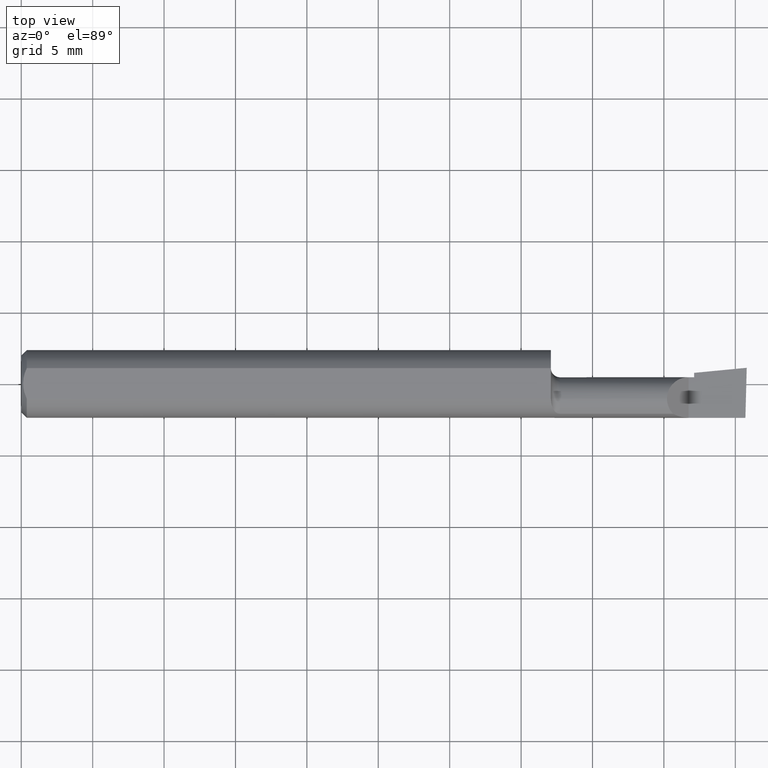
[diagram: clean part render]
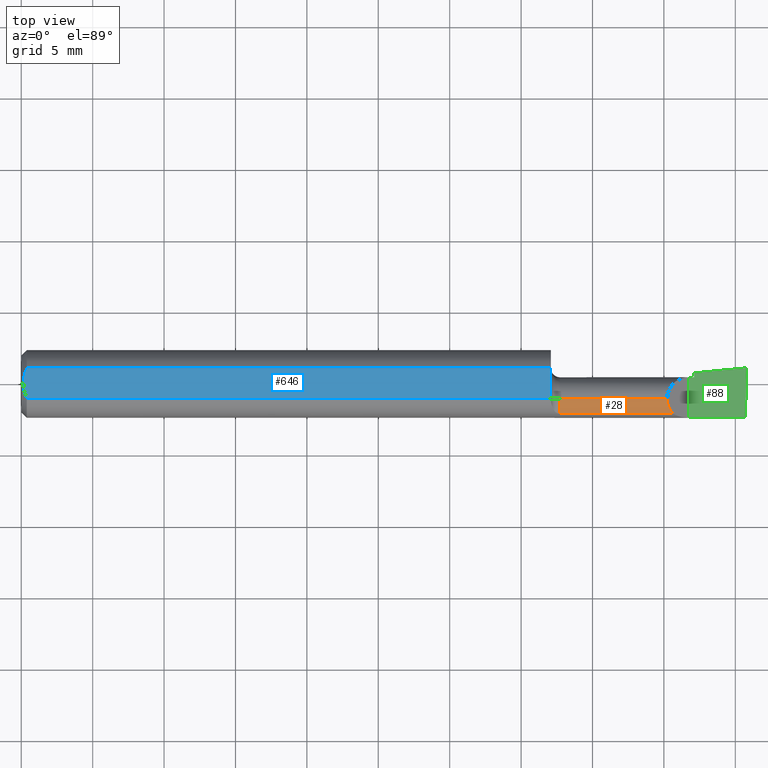
[diagram: same view with three faces highlighted in distinct colors, each labeled with its STEP entity id]
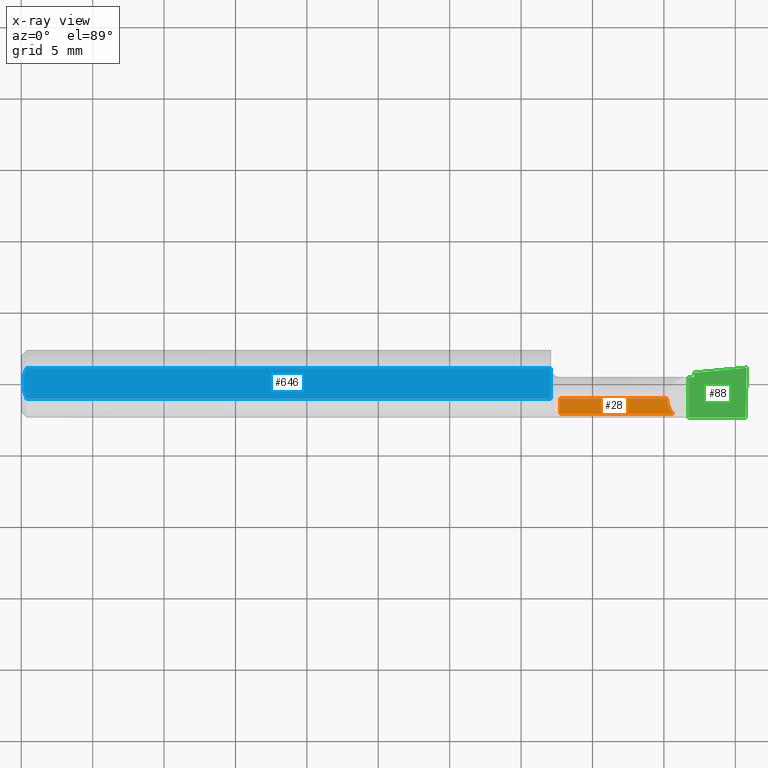
[diagram: x-ray of the same camera — body ghosted, the three highlighted faces saturated]
A machine part, top view with three faces highlighted in distinct colors.
The next image is the same camera in x-ray (body ghosted, the three faces saturated) — at least one of them is partly hidden behind the body in this view.
Their STEP definitions:

[orange] entity #28 — the highlighted cylindrical surface (edge-blend (fillet) strip) has radius 1.5215 mm, axis along (-1, -0, -0).
#3 = VERTEX_POINT ( 'NONE', #570 ) ;
#28 = ADVANCED_FACE ( 'NONE', ( #513 ), #362, .T. ) ;
#46 = VERTEX_POINT ( 'NONE', #633 ) ;
#52 = CARTESIAN_POINT ( 'NONE',  ( 1.796877448822106649, -0.08307469879518077083, 0.04312255117789291076 ) ) ;
#59 = AXIS2_PLACEMENT_3D ( 'NONE', #622, #511, #202 ) ;
#63 = CARTESIAN_POINT ( 'NONE',  ( 1.484999999999999876, -0.04150000000000000216, 0.05989999999999996022 ) ) ;
#169 = EDGE_LOOP ( 'NONE', ( #578, #611, #501, #244 ) ) ;
#173 = EDGE_CURVE ( 'NONE', #587, #3, #186, .T. ) ;
#177 = EDGE_CURVE ( 'NONE', #587, #395, #444, .T. ) ;
#186 = LINE ( 'NONE', #577, #270 ) ;
#189 = VECTOR ( 'NONE', #423, 39.37007874015748143 ) ;
#202 = DIRECTION ( 'NONE',  ( 0.0000000000000000000, 0.0000000000000000000, 1.000000000000000000 ) ) ;
#240 = AXIS2_PLACEMENT_3D ( 'NONE', #635, #467, #522 ) ;
#243 = CARTESIAN_POINT ( 'NONE',  ( 1.780099999999999349, -0.04150000000000000216, 0.05989999999999998798 ) ) ;
#244 = ORIENTED_EDGE ( 'NONE', *, *, #173, .T. ) ;
#270 = VECTOR ( 'NONE', #470, 39.37007874015748143 ) ;
#362 = CYLINDRICAL_SURFACE ( 'NONE', #59, 0.05989999999999998798 ) ;
#395 = VERTEX_POINT ( 'NONE', #63 ) ;
#423 = DIRECTION ( 'NONE',  ( -1.000000000000000000, -0.0000000000000000000, -0.0000000000000000000 ) ) ;
#435 = EDGE_CURVE ( 'NONE', #46, #395, #460, .T. ) ;
#444 = CIRCLE ( 'NONE', #240, 0.05989999999999996022 ) ;
#460 = LINE ( 'NONE', #516, #189 ) ;
#467 = DIRECTION ( 'NONE',  ( -1.000000000000000000, -0.0000000000000000000, -0.0000000000000000000 ) ) ;
#470 = DIRECTION ( 'NONE',  ( 1.000000000000000000, 0.0000000000000000000, 0.0000000000000000000 ) ) ;
#501 = ORIENTED_EDGE ( 'NONE', *, *, #177, .F. ) ;
#511 = DIRECTION ( 'NONE',  ( -1.000000000000000000, -0.0000000000000000000, -0.0000000000000000000 ) ) ;
#513 = FACE_OUTER_BOUND ( 'NONE', #169, .T. ) ;
#515 = CARTESIAN_POINT ( 'NONE',  ( 1.780099999999999349, -0.05720488466914005338, 0.05989999999999997410 ) ) ;
#516 = CARTESIAN_POINT ( 'NONE',  ( 0.0000000000000000000, -0.04150000000000000216, 0.05989999999999998798 ) ) ;
#522 = DIRECTION ( 'NONE',  ( 0.0000000000000000000, 0.0000000000000000000, 1.000000000000000000 ) ) ;
#536 = EDGE_CURVE ( 'NONE', #3, #46, #592, .T. ) ;
#569 = CARTESIAN_POINT ( 'NONE',  ( 1.785977184218892067, -0.07176861043311237587, 0.05402281578110743054 ) ) ;
#570 = CARTESIAN_POINT ( 'NONE',  ( 1.796877448822106649, -0.08307469879518077083, 0.04312255117789291076 ) ) ;
#577 = CARTESIAN_POINT ( 'NONE',  ( 1.669999999999999929, -0.08307469879518075695, 0.04312255117789293157 ) ) ;
#578 = ORIENTED_EDGE ( 'NONE', *, *, #536, .T. ) ;
#586 = CARTESIAN_POINT ( 'NONE',  ( 1.484999999999999876, -0.08307469879518063205, 0.04312255117789300790 ) ) ;
#587 = VERTEX_POINT ( 'NONE', #586 ) ;
#592 =( BOUNDED_CURVE ( )  B_SPLINE_CURVE ( 3, ( #52, #569, #515, #243 ),
 .UNSPECIFIED., .F., .T. ) 
 B_SPLINE_CURVE_WITH_KNOTS ( ( 4, 4 ),
 ( 5.516060229395657544, 6.283185307179586232 ),
 .UNSPECIFIED. ) 
 CURVE ( )  GEOMETRIC_REPRESENTATION_ITEM ( )  RATIONAL_B_SPLINE_CURVE ( ( 1.000000000000000000, 0.9515582177473689285, 0.9515582177473689285, 1.000000000000000000 ) ) 
 REPRESENTATION_ITEM ( '' )  );
#611 = ORIENTED_EDGE ( 'NONE', *, *, #435, .T. ) ;
#622 = CARTESIAN_POINT ( 'NONE',  ( 0.0000000000000000000, -0.04150000000000000216, 0.0000000000000000000 ) ) ;
#633 = CARTESIAN_POINT ( 'NONE',  ( 1.780099999999999349, -0.04150000000000000216, 0.05989999999999998798 ) ) ;
#635 = CARTESIAN_POINT ( 'NONE',  ( 1.484999999999999876, -0.04150000000000000216, 0.0000000000000000000 ) ) ;

[blue] entity #646 — the highlighted planar face has unit normal (0, -0, -1).
#7 = VERTEX_POINT ( 'NONE', #457 ) ;
#9 = LINE ( 'NONE', #612, #77 ) ;
#16 = CARTESIAN_POINT ( 'NONE',  ( 0.005000000000000225618, 0.007308422719211825694, 0.08360000000000000764 ) ) ;
#19 = CARTESIAN_POINT ( 'NONE',  ( 1.460033822879743370, -0.04159918775969437960, 0.08360000000000000764 ) ) ;
#43 = ORIENTED_EDGE ( 'NONE', *, *, #207, .F. ) ;
#49 = B_SPLINE_CURVE_WITH_KNOTS ( 'NONE', 3,
 ( #274, #323, #130, #175, #381, #594 ),
 .UNSPECIFIED., .F., .F.,
 ( 4, 2, 4 ),
 ( 0.005785415439423114564, 0.006333348270144337384, 0.006881281100865560205 ),
 .UNSPECIFIED. ) ;
#56 = ORIENTED_EDGE ( 'NONE', *, *, #576, .F. ) ;
#71 = CARTESIAN_POINT ( 'NONE',  ( 1.460033749376515422, -0.04199594133387062750, 0.08360000000000003539 ) ) ;
#77 = VECTOR ( 'NONE', #660, 39.37007874015748143 ) ;
#86 = CARTESIAN_POINT ( 'NONE',  ( 1.460010473476444526, -0.03163306423249835631, 0.08360000000000000764 ) ) ;
#87 = CARTESIAN_POINT ( 'NONE',  ( 0.01499999999999999598, 0.04209513035969837669, 0.08360000000000000764 ) ) ;
#94 = VECTOR ( 'NONE', #279, 39.37007874015748143 ) ;
#97 = VERTEX_POINT ( 'NONE', #248 ) ;
#100 = ORIENTED_EDGE ( 'NONE', *, *, #192, .F. ) ;
#110 = PLANE ( 'NONE',  #289 ) ;
#113 = B_SPLINE_CURVE_WITH_KNOTS ( 'NONE', 3,
 ( #262, #19, #306, #71, #217 ),
 .UNSPECIFIED., .F., .F.,
 ( 4, 1, 4 ),
 ( 0.001137327269498854699, 0.001144877036798491862, 0.001152426804098129025 ),
 .UNSPECIFIED. ) ;
#126 = CARTESIAN_POINT ( 'NONE',  ( 0.005000000000000236026, 1.025183009042025117E-17, 0.08360000000000000764 ) ) ;
#130 = CARTESIAN_POINT ( 'NONE',  ( 0.009539353699420828961, -0.02875682547511369466, 0.08360000000000000764 ) ) ;
#132 = CARTESIAN_POINT ( 'NONE',  ( 1.460033822879743814, -0.03903342675892663288, 0.08360000000000000764 ) ) ;
#141 = EDGE_LOOP ( 'NONE', ( #43, #162, #535, #100, #258, #56, #560 ) ) ;
#162 = ORIENTED_EDGE ( 'NONE', *, *, #354, .F. ) ;
#165 = CARTESIAN_POINT ( 'NONE',  ( 0.005981829149300843529, 0.01454044632356567453, 0.08360000000000003539 ) ) ;
#175 = CARTESIAN_POINT ( 'NONE',  ( 0.005975039161239529238, -0.01453776427033147065, 0.08359999999999997988 ) ) ;
#183 = EDGE_CURVE ( 'NONE', #551, #195, #113, .T. ) ;
#192 = EDGE_CURVE ( 'NONE', #317, #242, #558, .T. ) ;
#195 = VERTEX_POINT ( 'NONE', #540 ) ;
#207 = EDGE_CURVE ( 'NONE', #97, #551, #464, .T. ) ;
#216 = DIRECTION ( 'NONE',  ( 0.0000000000000000000, 1.000000000000000000, -1.189000693621284344E-16 ) ) ;
#217 = CARTESIAN_POINT ( 'NONE',  ( 1.460033712670300021, -0.04209513035969835587, 0.08360000000000000764 ) ) ;
#218 = LINE ( 'NONE', #231, #94 ) ;
#227 = CARTESIAN_POINT ( 'NONE',  ( 0.01499999999999999598, 0.04209513035969837669, 0.08360000000000000764 ) ) ;
#231 = CARTESIAN_POINT ( 'NONE',  ( 0.0000000000000000000, 0.04209513035969837669, 0.08360000000000000764 ) ) ;
#242 = VERTEX_POINT ( 'NONE', #227 ) ;
#248 = CARTESIAN_POINT ( 'NONE',  ( 1.459999999999999742, -0.02669966216601827105, 0.08360000000000000764 ) ) ;
#258 = ORIENTED_EDGE ( 'NONE', *, *, #313, .F. ) ;
#262 = CARTESIAN_POINT ( 'NONE',  ( 1.460033822879743592, -0.04150000000000000216, 0.08360000000000000764 ) ) ;
#274 = CARTESIAN_POINT ( 'NONE',  ( 0.01499999999999999944, -0.04209513035969835587, 0.08360000000000000764 ) ) ;
#279 = DIRECTION ( 'NONE',  ( 1.000000000000000000, 0.0000000000000000000, 0.0000000000000000000 ) ) ;
#285 = VECTOR ( 'NONE', #391, 39.37007874015748143 ) ;
#286 = EDGE_CURVE ( 'NONE', #242, #7, #218, .T. ) ;
#289 = AXIS2_PLACEMENT_3D ( 'NONE', #627, #370, #216 ) ;
#306 = CARTESIAN_POINT ( 'NONE',  ( 1.460033804492674392, -0.04179756391332128951, 0.08360000000000000764 ) ) ;
#313 = EDGE_CURVE ( 'NONE', #547, #317, #49, .T. ) ;
#317 = VERTEX_POINT ( 'NONE', #126 ) ;
#323 = CARTESIAN_POINT ( 'NONE',  ( 0.01206089165507025218, -0.03555991978469313225, 0.08360000000000000764 ) ) ;
#354 = EDGE_CURVE ( 'NONE', #7, #97, #392, .T. ) ;
#356 = CARTESIAN_POINT ( 'NONE',  ( 0.01499999999999999944, -0.04209513035969835587, 0.08360000000000000764 ) ) ;
#370 = DIRECTION ( 'NONE',  ( 0.0000000000000000000, -1.189000693621284344E-16, -1.000000000000000000 ) ) ;
#381 = CARTESIAN_POINT ( 'NONE',  ( 0.005000000000000227353, -0.007328888879231044290, 0.08360000000000000764 ) ) ;
#391 = DIRECTION ( 'NONE',  ( 0.0000000000000000000, -1.000000000000000000, 1.189000693621284344E-16 ) ) ;
#392 = LINE ( 'NONE', #437, #285 ) ;
#413 = CARTESIAN_POINT ( 'NONE',  ( 0.005000000000000236026, 1.025183009042025117E-17, 0.08360000000000000764 ) ) ;
#417 = CARTESIAN_POINT ( 'NONE',  ( 0.009492654797564338900, 0.02859466010166627700, 0.08360000000000000764 ) ) ;
#429 = CARTESIAN_POINT ( 'NONE',  ( 1.459999999999999964, -0.02916612216505919120, 0.08360000000000000764 ) ) ;
#433 = CARTESIAN_POINT ( 'NONE',  ( 1.460027419345086841, -0.03656676420729536997, 0.08359999999999997988 ) ) ;
#434 = CARTESIAN_POINT ( 'NONE',  ( 1.460033822879743592, -0.04150000000000000216, 0.08360000000000000764 ) ) ;
#437 = CARTESIAN_POINT ( 'NONE',  ( 1.459999999999999742, 0.1436000000000000332, 0.08359999999999999376 ) ) ;
#457 = CARTESIAN_POINT ( 'NONE',  ( 1.459999999999999742, 0.04209513035969836975, 0.08360000000000000764 ) ) ;
#459 = CARTESIAN_POINT ( 'NONE',  ( 0.01203648650249651043, 0.03550565407121124978, 0.08360000000000000764 ) ) ;
#464 = B_SPLINE_CURVE_WITH_KNOTS ( 'NONE', 3,
 ( #483, #429, #86, #433, #132, #434 ),
 .UNSPECIFIED., .F., .F.,
 ( 4, 2, 4 ),
 ( 0.0007618363005527830755, 0.0009495817850258188872, 0.001137327269498854699 ),
 .UNSPECIFIED. ) ;
#483 = CARTESIAN_POINT ( 'NONE',  ( 1.459999999999999742, -0.02669966216601827105, 0.08360000000000000764 ) ) ;
#507 = CARTESIAN_POINT ( 'NONE',  ( 1.460033822879743592, -0.04150000000000000216, 0.08360000000000000764 ) ) ;
#535 = ORIENTED_EDGE ( 'NONE', *, *, #286, .F. ) ;
#540 = CARTESIAN_POINT ( 'NONE',  ( 1.460033712670300021, -0.04209513035969835587, 0.08360000000000000764 ) ) ;
#547 = VERTEX_POINT ( 'NONE', #356 ) ;
#551 = VERTEX_POINT ( 'NONE', #507 ) ;
#558 = B_SPLINE_CURVE_WITH_KNOTS ( 'NONE', 3,
 ( #413, #16, #165, #417, #459, #87 ),
 .UNSPECIFIED., .F., .F.,
 ( 4, 2, 4 ),
 ( 0.006881281100865560205, 0.007427683811376459971, 0.007974086521887359738 ),
 .UNSPECIFIED. ) ;
#560 = ORIENTED_EDGE ( 'NONE', *, *, #183, .F. ) ;
#568 = FACE_OUTER_BOUND ( 'NONE', #141, .T. ) ;
#576 = EDGE_CURVE ( 'NONE', #195, #547, #9, .T. ) ;
#594 = CARTESIAN_POINT ( 'NONE',  ( 0.005000000000000236026, 1.025183009042025117E-17, 0.08360000000000000764 ) ) ;
#612 = CARTESIAN_POINT ( 'NONE',  ( 0.0000000000000000000, -0.04209513035969835587, 0.08360000000000000764 ) ) ;
#627 = CARTESIAN_POINT ( 'NONE',  ( 2.000000000000000000, 0.1436000000000000332, 0.08359999999999999376 ) ) ;
#646 = ADVANCED_FACE ( 'NONE', ( #568 ), #110, .F. ) ;
#660 = DIRECTION ( 'NONE',  ( -1.000000000000000000, -0.0000000000000000000, -0.0000000000000000000 ) ) ;

[green] entity #88 — the highlighted planar face has unit normal (-0, 0, -1).
#1 = ORIENTED_EDGE ( 'NONE', *, *, #276, .F. ) ;
#12 = VERTEX_POINT ( 'NONE', #64 ) ;
#15 = CARTESIAN_POINT ( 'NONE',  ( 1.992296147241039872, -0.2497982675158734178, -6.406435080701879992E-17 ) ) ;
#18 = ORIENTED_EDGE ( 'NONE', *, *, #397, .F. ) ;
#22 = VERTEX_POINT ( 'NONE', #296 ) ;
#31 = VERTEX_POINT ( 'NONE', #408 ) ;
#50 = VERTEX_POINT ( 'NONE', #80 ) ;
#64 = CARTESIAN_POINT ( 'NONE',  ( 1.840000000000000080, -0.09360000000000005815, 1.959434878635762025E-17 ) ) ;
#80 = CARTESIAN_POINT ( 'NONE',  ( 1.840000000000000080, 0.01839999999999989908, 1.959434878635762025E-17 ) ) ;
#82 = CARTESIAN_POINT ( 'NONE',  ( 2.000000000000003997, 0.04440000000001222136, 3.860442696046812169E-14 ) ) ;
#88 = ADVANCED_FACE ( 'NONE', ( #425 ), #180, .F. ) ;
#96 = LINE ( 'NONE', #146, #453 ) ;
#103 = VECTOR ( 'NONE', #385, 39.37007874015748143 ) ;
#124 = DIRECTION ( 'NONE',  ( 0.9953961983671787417, 0.09584575252022466130, -5.467869873542577569E-16 ) ) ;
#133 = ORIENTED_EDGE ( 'NONE', *, *, #347, .F. ) ;
#134 = ORIENTED_EDGE ( 'NONE', *, *, #520, .F. ) ;
#146 = CARTESIAN_POINT ( 'NONE',  ( 5.659797890829555466E-31, 0.01839999999999997540, 1.030335658007946046E-15 ) ) ;
#151 = LINE ( 'NONE', #333, #548 ) ;
#166 = CARTESIAN_POINT ( 'NONE',  ( 1.854999999999999982, 0.01839999999999999969, 1.030335658007946440E-15 ) ) ;
#179 = CARTESIAN_POINT ( 'NONE',  ( 2.000000000000000000, -0.2500000000000000555, -6.829619984160658046E-17 ) ) ;
#180 = PLANE ( 'NONE',  #496 ) ;
#185 = EDGE_LOOP ( 'NONE', ( #1, #241, #18, #133, #134, #443 ) ) ;
#197 = CARTESIAN_POINT ( 'NONE',  ( 1.840000000000000080, -0.2500000000000000555, 1.959434878635762025E-17 ) ) ;
#206 = VECTOR ( 'NONE', #366, 39.37007874015749564 ) ;
#221 = VERTEX_POINT ( 'NONE', #82 ) ;
#230 = DIRECTION ( 'NONE',  ( -1.000000000000000000, 0.0000000000000000000, 5.493159289247764363E-16 ) ) ;
#234 = DIRECTION ( 'NONE',  ( 0.0000000000000000000, 1.000000000000000000, 0.0000000000000000000 ) ) ;
#241 = ORIENTED_EDGE ( 'NONE', *, *, #488, .T. ) ;
#252 = VECTOR ( 'NONE', #297, 39.37007874015748143 ) ;
#276 = EDGE_CURVE ( 'NONE', #22, #12, #605, .T. ) ;
#296 = CARTESIAN_POINT ( 'NONE',  ( 1.996386342823452287, -0.09360000000000009979, -6.634435288474569554E-17 ) ) ;
#297 = DIRECTION ( 'NONE',  ( -0.0000000000000000000, 1.000000000000000000, -0.0000000000000000000 ) ) ;
#327 = VECTOR ( 'NONE', #124, 39.37007874015748143 ) ;
#333 = CARTESIAN_POINT ( 'NONE',  ( 1.854999999999999982, -0.2500000000000000555, 1.135460985248596835E-17 ) ) ;
#340 = LINE ( 'NONE', #197, #252 ) ;
#347 = EDGE_CURVE ( 'NONE', #607, #31, #151, .T. ) ;
#366 = DIRECTION ( 'NONE',  ( 0.02617694830786435750, 0.9996573249755573709, -1.459184416195624665E-17 ) ) ;
#385 = DIRECTION ( 'NONE',  ( -1.000000000000000000, -0.0000000000000000000, -0.0000000000000000000 ) ) ;
#397 = EDGE_CURVE ( 'NONE', #31, #221, #500, .T. ) ;
#408 = CARTESIAN_POINT ( 'NONE',  ( 1.854999999999999982, 0.03043808801135922115, 1.030335937757294514E-15 ) ) ;
#425 = FACE_OUTER_BOUND ( 'NONE', #185, .T. ) ;
#443 = ORIENTED_EDGE ( 'NONE', *, *, #528, .F. ) ;
#452 = DIRECTION ( 'NONE',  ( 1.000000000000000000, 0.0000000000000000000, 0.0000000000000000000 ) ) ;
#453 = VECTOR ( 'NONE', #452, 39.37007874015748143 ) ;
#488 = EDGE_CURVE ( 'NONE', #22, #221, #639, .T. ) ;
#496 = AXIS2_PLACEMENT_3D ( 'NONE', #179, #541, #230 ) ;
#500 = LINE ( 'NONE', #604, #327 ) ;
#520 = EDGE_CURVE ( 'NONE', #50, #607, #96, .T. ) ;
#528 = EDGE_CURVE ( 'NONE', #12, #50, #340, .T. ) ;
#541 = DIRECTION ( 'NONE',  ( -5.493159289247764363E-16, 0.0000000000000000000, -1.000000000000000000 ) ) ;
#548 = VECTOR ( 'NONE', #234, 39.37007874015748143 ) ;
#604 = CARTESIAN_POINT ( 'NONE',  ( 1.107894390816139163, -0.04150000000000000216, 4.217516215662293437E-16 ) ) ;
#605 = LINE ( 'NONE', #638, #103 ) ;
#607 = VERTEX_POINT ( 'NONE', #166 ) ;
#638 = CARTESIAN_POINT ( 'NONE',  ( 5.659797890829555466E-31, -0.09359999999999998876, 1.030335658007946046E-15 ) ) ;
#639 = LINE ( 'NONE', #15, #206 ) ;